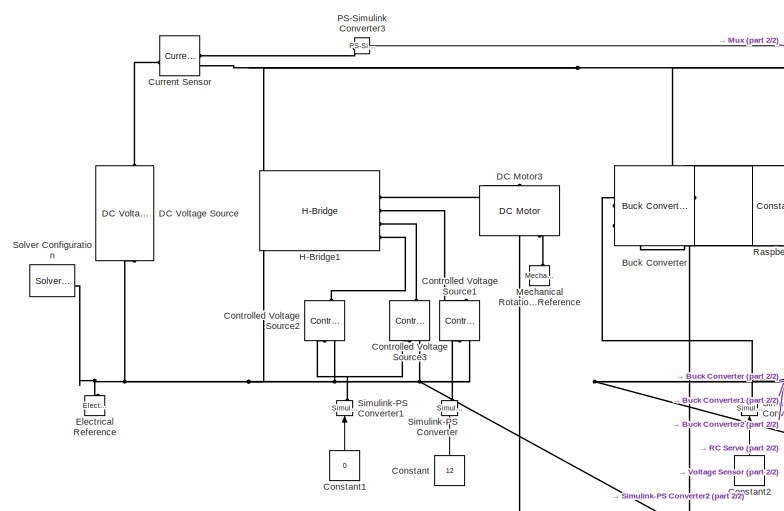
[diagram: root canvas - part 1/2, top left region]
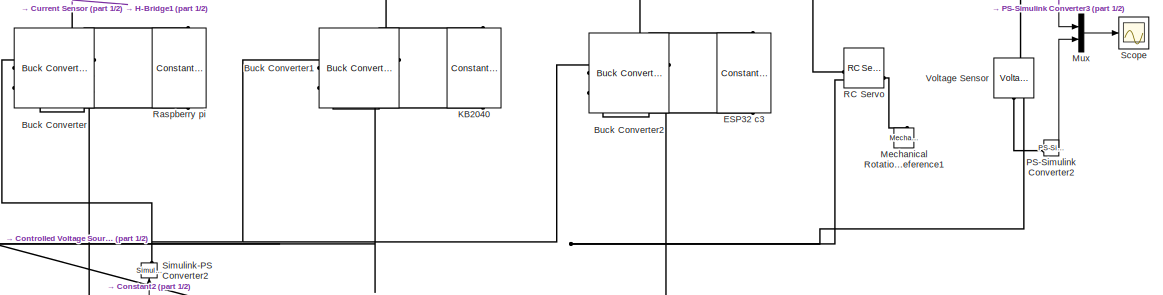
[diagram: root canvas - part 2/2, top center region]
MODEL slx_d871909819a9
KIND model
CONFIG AbsTol = 1e-3
CONFIG EnableMultiTasking = off
CONFIG FixedStep = auto
CONFIG MaxStep = auto
CONFIG MinStep = auto
CONFIG RelTol = 1e-3
CONFIG SampleTimeConstraint = Unconstrained
CONFIG SolverName = VariableStepAuto
CONFIG StartTime = 0.0
CONFIG StopTime = inf
BLOCK [Reference] Buck Converter  REF=ee_lib/Semiconductors &
Converters/Converters/Buck Converter
  SourceBlock = ee_lib/Semiconductors &\nConverters/Converters/Buck Converter
  SourceType = Buck Converter
BLOCK [Reference] Buck Converter1  REF=ee_lib/Semiconductors &
Converters/Converters/Buck Converter
  SourceBlock = ee_lib/Semiconductors &\nConverters/Converters/Buck Converter
  SourceType = Buck Converter
BLOCK [Reference] Buck Converter2  REF=ee_lib/Semiconductors &
Converters/Converters/Buck Converter
  SourceBlock = ee_lib/Semiconductors &\nConverters/Converters/Buck Converter
  SourceType = Buck Converter
BLOCK [Constant] Constant
  NameLocation = right
  Value = 12
BLOCK [Constant] Constant1
  NameLocation = right
  Value = 0
BLOCK [Constant] Constant2
  NameLocation = right
BLOCK [Reference] Controlled Voltage Source1  REF=fl_lib/Electrical/Electrical Sources/Controlled Voltage
Source
  NameLocation = right
  SourceBlock = fl_lib/Electrical/Electrical Sources/Controlled Voltage\nSource
  SourceType = Controlled Voltage\nSource
BLOCK [Reference] Controlled Voltage Source2  REF=fl_lib/Electrical/Electrical Sources/Controlled Voltage
Source
  NameLocation = right
  SourceBlock = fl_lib/Electrical/Electrical Sources/Controlled Voltage\nSource
  SourceType = Controlled Voltage\nSource
BLOCK [Reference] Controlled Voltage Source3  REF=fl_lib/Electrical/Electrical Sources/Controlled Voltage
Source
  NameLocation = right
  SourceBlock = fl_lib/Electrical/Electrical Sources/Controlled Voltage\nSource
  SourceType = Controlled Voltage\nSource
BLOCK [Reference] Current Sensor  REF=fl_lib/Electrical/Electrical Sensors/Current Sensor
  SourceBlock = fl_lib/Electrical/Electrical Sensors/Current Sensor
  SourceType = Current Sensor
BLOCK [Reference] DC Motor3  REF=ee_lib/Electromechanical/Brushed Motors/DC Motor
  NameLocation = right
  SourceBlock = ee_lib/Electromechanical/Brushed Motors/DC Motor
  SourceType = DC Motor
BLOCK [Reference] DC Voltage Source  REF=ee_lib/Additional
Components/SPICE Sources/DC Voltage Source
  NameLocation = right
  SourceBlock = ee_lib/Additional\nComponents/SPICE Sources/DC Voltage Source
  SourceType = DC Voltage Source
BLOCK [Reference] ESP32 c3  REF=ee_lib/Passive/Constant Power Load
  NameLocation = right
  SourceBlock = ee_lib/Passive/Constant Power Load
  SourceType = Constant Power Load
BLOCK [Reference] Electrical Reference  REF=fl_lib/Electrical/Electrical Elements/Electrical Reference
  SourceBlock = fl_lib/Electrical/Electrical Elements/Electrical Reference
  SourceType = Electrical Reference
BLOCK [Reference] H-Bridge1  REF=ee_lib/Semiconductors &
Converters/Converters/H-Bridge
  SourceBlock = ee_lib/Semiconductors &\nConverters/Converters/H-Bridge
  SourceType = H-Bridge
BLOCK [Reference] KB2040  REF=ee_lib/Passive/Constant Power Load
  NameLocation = right
  SourceBlock = ee_lib/Passive/Constant Power Load
  SourceType = Constant Power Load
BLOCK [Reference] Mechanical Rotational Reference  REF=fl_lib/Mechanical/Rotational Elements/Mechanical
Rotational Reference
  NameLocation = right
  SourceBlock = fl_lib/Mechanical/Rotational Elements/Mechanical\nRotational Reference
  SourceType = Mechanical\nRotational Reference
BLOCK [Reference] Mechanical Rotational Reference1  REF=fl_lib/Mechanical/Rotational Elements/Mechanical
Rotational Reference
  NameLocation = right
  SourceBlock = fl_lib/Mechanical/Rotational Elements/Mechanical\nRotational Reference
  SourceType = Mechanical\nRotational Reference
BLOCK [Mux] Mux
  DisplayOption = bar
  Inputs = 2
BLOCK [Reference] PS-Simulink Converter2  REF=nesl_utility/PS-Simulink
Converter
  SourceBlock = nesl_utility/PS-Simulink\nConverter
  SourceType = PS-Simulink\nConverter
BLOCK [Reference] PS-Simulink Converter3  REF=nesl_utility/PS-Simulink
Converter
  SourceBlock = nesl_utility/PS-Simulink\nConverter
  SourceType = PS-Simulink\nConverter
BLOCK [Reference] RC Servo  REF=ee_lib/Electromechanical/Brushed Motors/RC Servo
  SourceBlock = ee_lib/Electromechanical/Brushed Motors/RC Servo
  SourceType = RC Servo
BLOCK [Reference] Raspberry pi  REF=ee_lib/Passive/Constant Power Load
  NameLocation = right
  SourceBlock = ee_lib/Passive/Constant Power Load
  SourceType = Constant Power Load
BLOCK [Scope] Scope
  Floating = off
  NumInputPorts = 1
  ScopeSpecificationString = Simulink.scopes.TimeScopeBlockCfg('CurrentConfiguration', extmgr.ConfigurationSet(extmgr.Configuration('Core','General UI',true),extmgr.Configuration('Core','Source UI',true),extmgr.Configuration('Sources','WiredSimulink',true),extmgr.Configuration('Visuals','Time Domain',true,'SerializedDisplays',{struct('MinYLimReal','6.4875','MaxYLimReal','11.6125','YLabelReal','','MinYLimMag','6.4875','MaxYLim...<+1646ch>
BLOCK [Reference] Simulink-PS Converter  REF=nesl_utility/Simulink-PS
Converter
  NameLocation = right
  SourceBlock = nesl_utility/Simulink-PS\nConverter
  SourceType = Simulink-PS\nConverter
BLOCK [Reference] Simulink-PS Converter1  REF=nesl_utility/Simulink-PS
Converter
  NameLocation = right
  SourceBlock = nesl_utility/Simulink-PS\nConverter
  SourceType = Simulink-PS\nConverter
BLOCK [Reference] Simulink-PS Converter2  REF=nesl_utility/Simulink-PS
Converter
  NameLocation = right
  SourceBlock = nesl_utility/Simulink-PS\nConverter
  SourceType = Simulink-PS\nConverter
BLOCK [Reference] Solver Configuration  REF=nesl_utility/Solver
Configuration
  SourceBlock = nesl_utility/Solver\nConfiguration
  SourceType = Solver\nConfiguration
BLOCK [Reference] Voltage Sensor  REF=fl_lib/Electrical/Electrical Sensors/Voltage Sensor
  NameLocation = right
  SourceBlock = fl_lib/Electrical/Electrical Sensors/Voltage Sensor
  SourceType = Voltage Sensor
LINE Constant1:1 -> Simulink-PS Converter1:1
LINE Constant2:1 -> Simulink-PS Converter2:1
LINE Constant:1 -> Simulink-PS Converter:1
LINE Mux:1 -> Scope:1
LINE PS-Simulink Converter2:1 -> Mux:2
LINE PS-Simulink Converter3:1 -> Mux:1
PNET net1: Buck Converter1:LConn1 -- Buck Converter2:LConn1 -- Buck Converter:LConn1 -- Simulink-PS Converter2:RConn1
PNET net2: Buck Converter1:LConn2 -- Buck Converter2:LConn2 -- Buck Converter:LConn2 -- Current Sensor:RConn2 -- H-Bridge1:RConn1 -- RC Servo:LConn2 -- Voltage Sensor:LConn1
PNET net3: Buck Converter1:LConn3 -- Buck Converter2:LConn3 -- Buck Converter:LConn3 -- Controlled Voltage Source1:RConn2 -- Controlled Voltage Source2:RConn2 -- Controlled Voltage Source3:RConn2 -- DC Motor3:RConn1 -- DC Voltage Source:RConn1 -- Electrical Reference:LConn1 -- H-Bridge1:RConn2 -- RC Servo:LConn3 -- Solver Configuration:RConn1 -- Voltage Sensor:RConn2
PLINE Buck Converter1:RConn1 -- KB2040:LConn1
PLINE Buck Converter1:RConn2 -- KB2040:RConn1
PLINE Buck Converter2:RConn1 -- ESP32 c3:LConn1
PLINE Buck Converter2:RConn2 -- ESP32 c3:RConn1
PLINE Buck Converter:RConn1 -- Raspberry pi:LConn1
PLINE Buck Converter:RConn2 -- Raspberry pi:RConn1
PLINE Controlled Voltage Source1:LConn1 -- H-Bridge1:LConn2
PLINE Controlled Voltage Source1:RConn1 -- Simulink-PS Converter:RConn1
PLINE Controlled Voltage Source2:LConn1 -- H-Bridge1:LConn4
PNET net4: Controlled Voltage Source2:RConn1 -- Controlled Voltage Source3:RConn1 -- Simulink-PS Converter1:RConn1
PLINE Controlled Voltage Source3:LConn1 -- H-Bridge1:LConn3
PLINE Current Sensor:LConn1 -- DC Voltage Source:LConn1
PLINE Current Sensor:RConn1 -- PS-Simulink Converter3:LConn1
PLINE DC Motor3:LConn1 -- H-Bridge1:LConn1
PLINE DC Motor3:RConn2 -- Mechanical Rotational Reference:LConn1
PLINE Mechanical Rotational Reference1:LConn1 -- RC Servo:RConn2
PLINE PS-Simulink Converter2:LConn1 -- Voltage Sensor:RConn1
note: PNET lines group multi-terminal physical nets as a canonical sorted terminal list (undirected conserving connections); 2-terminal nets keep the pairwise PLINE form
